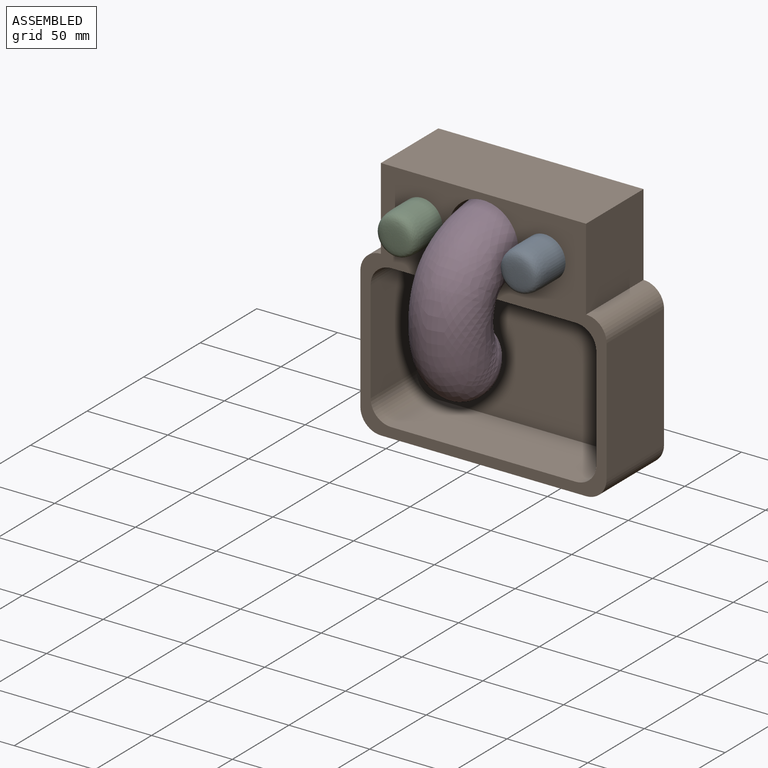
[diagram: assembled view]
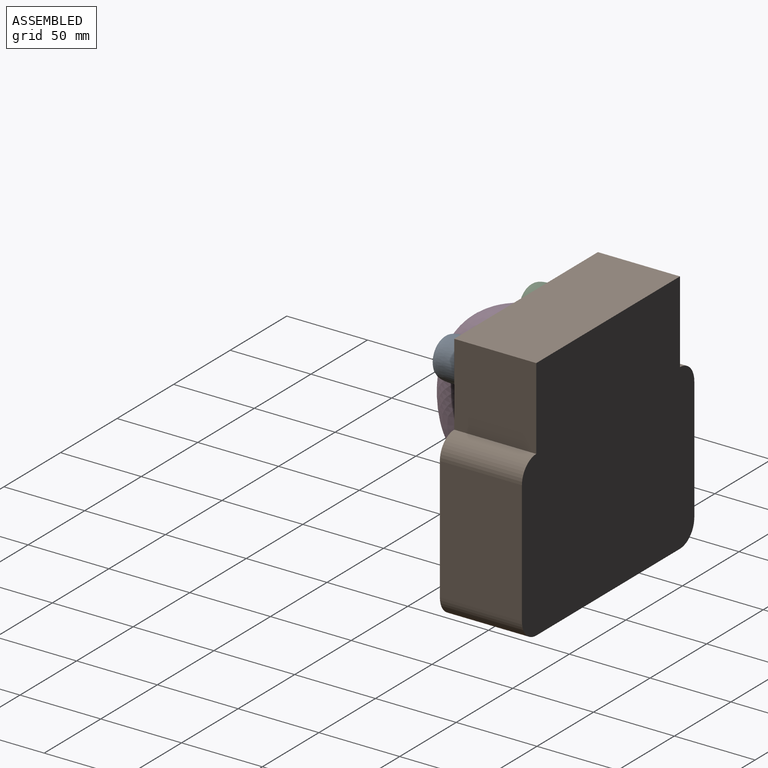
[diagram: assembled view, second angle]
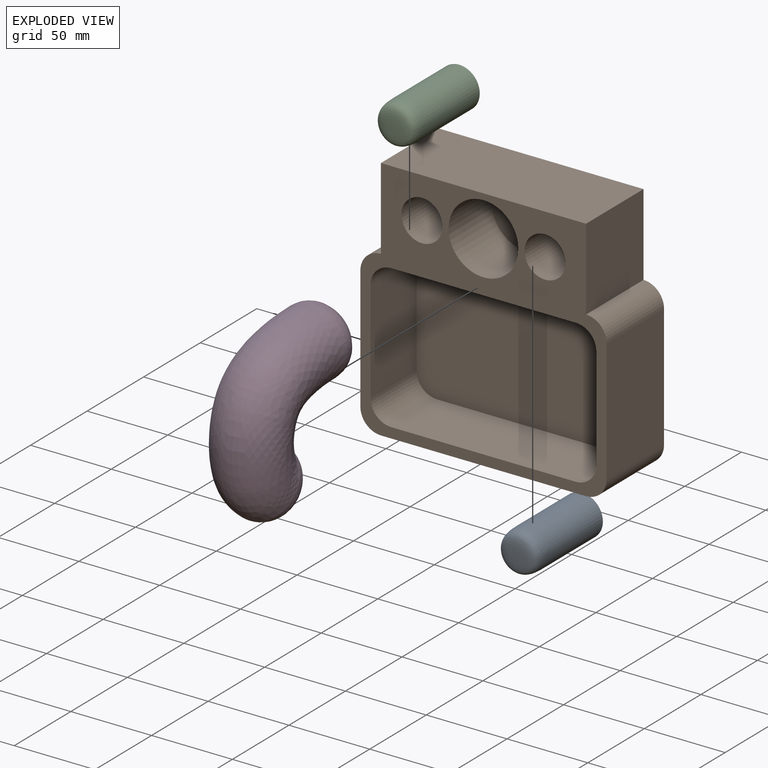
[diagram: exploded view]
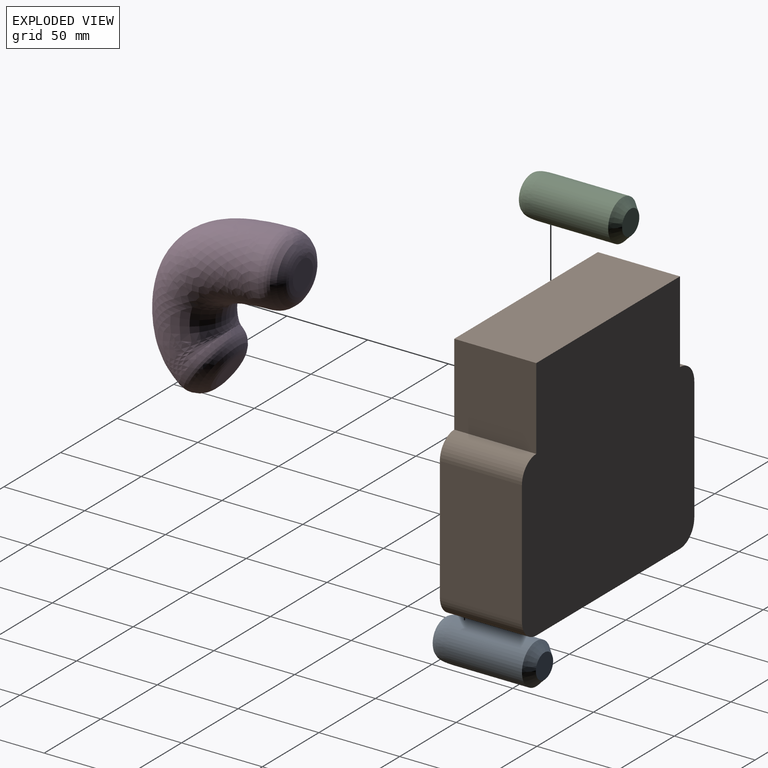
[diagram: exploded view, second angle]
ASSEMBLY  parts=4 mates=3
PART A: 4 faces, bbox 25.4x63.5x25.4 mm
  f0: cylinder r=12.7mm len=45.72mm, axis (0,1,0), area 3648.3mm2, adj f2,f3
  f1: plane 15.24x15.24mm, normal (0,1,0), area 182.4mm2, adj f2
  f2: cone r=12.7mm half-angle=45deg, axis (0,-1,0), area 458.6mm2, adj f0,f1
  f3: bspline ~25.39x25.37mm, area 1253.5mm2, adj f0
PART B: 27 faces, bbox 152.4x50.8x152.4 mm
  f0: cylinder r=12.7mm len=50.8mm, axis (0,-1,0), area 1013.4mm2, adj f1,f7,f8,f19
  f1: plane 76.2x50.8mm, normal (-1,0,0), area 3871mm2, adj f0,f2,f7,f8
  f2: cylinder r=12.7mm len=50.8mm, axis (0,-1,0), area 1013.4mm2, adj f1,f3,f7,f8
  f3: plane 127x50.8mm, normal (0,0,-1), area 6451.6mm2, adj f2,f4,f7,f8
  f4: cylinder r=12.7mm len=50.8mm, axis (0,-1,0), area 1013.4mm2, adj f3,f5,f7,f8
  f5: plane 76.2x50.8mm, normal (1,0,0), area 3871mm2, adj f4,f6,f7,f8
  f6: cylinder r=12.7mm len=50.8mm, axis (0,-1,0), area 1013.4mm2, adj f5,f7,f8,f20
  f7: plane 152.4x152.4mm, normal (0,1,0), area 21797mm2, adj f0,f1,f2,f3,f4,f5,f6,f18
  f8: plane 152.4x152.4mm, normal (0,-1,0), area 7038.3mm2, adj f0,f1,f2,f3,f4,f5,f6,f9
  f9: cylinder r=12.7mm len=40.64mm, axis (0,-1,0), area 810.7mm2, adj f8,f10,f16,f17
  f10: plane 114.3x40.64mm, normal (0,0,-1), area 4645.2mm2, adj f8,f9,f11,f17
  f11: cylinder r=12.7mm len=40.64mm, axis (0,-1,0), area 810.7mm2, adj f8,f10,f12,f17
  f12: plane 63.5x40.64mm, normal (1,0,0), area 2580.6mm2, adj f8,f11,f13,f17
  f13: cylinder r=12.7mm len=40.64mm, axis (0,-1,0), area 810.7mm2, adj f8,f12,f14,f17
  f14: plane 114.3x40.64mm, normal (0,0,1), area 4645.2mm2, adj f8,f13,f15,f17
  f15: cylinder r=12.7mm len=40.64mm, axis (0,-1,0), area 810.7mm2, adj f8,f14,f16,f17
  f16: plane 63.5x40.64mm, normal (-1,0,0), area 2580.6mm2, adj f8,f9,f15,f17
  f17: plane 139.7x88.9mm, normal (0,-1,0), area 12280.9mm2, adj f9,f10,f11,f12,f13,f14,f15,f16
  f18: plane 127x50.8mm, normal (0,0,1), area 6451.6mm2, adj f7,f8,f19,f20
  f19: plane 50.8x50.8mm, normal (-1,0,0), area 2580.6mm2, adj f0,f7,f8,f18
  f20: plane 50.8x50.8mm, normal (1,0,0), area 2580.6mm2, adj f6,f7,f8,f18
  f21: cylinder r=12.7mm len=38.1mm, axis (0,-1,0), area 3040.2mm2, adj f8,f22
  f22: plane 25.4x25.4mm, normal (0,-1,0), area 506.7mm2, adj f21
  f23: cylinder r=21.59mm len=43.18mm, axis (0,-1,0), area 5168.4mm2, adj f8,f24
  f24: plane 43.18x43.18mm, normal (0,-1,0), area 1464.4mm2, adj f23
  f25: cylinder r=12.7mm len=38.1mm, axis (0,-1,0), area 3040.2mm2, adj f8,f26
  f26: plane 25.4x25.4mm, normal (0,-1,0), area 506.7mm2, adj f25
PART C: same geometry as A
PART D: 12 faces, bbox 113.8x48.5x93.7 mm
  f0: plane 17.78x17.77mm, normal (0,0,-1), area 248mm2, adj f4
  f1: plane 17.79x15.57mm, normal (-0.5,0,-0.87), area 251.1mm2, adj f3
  f2: bspline ~99.51x77.31mm, area 13813.5mm2, adj f3,f4
  f3: bspline ~43.84x43.44mm, area 2097.1mm2, adj f1,f2
  f4: bspline ~43.34x43.2mm, area 2126.8mm2, adj f0,f2
  f5: offset ~104.81x82.42mm, area 5609.2mm2, adj f6,f9,f10,f11
  f6: bspline ~16.75x7.58mm, area 120.7mm2, adj f5,f9,f10
  f7: plane 17.78x17.77mm, normal (0,0,-1), area 248mm2, adj f11
  f8: plane 17.79x15.57mm, normal (-0.5,0,-0.87), area 251.1mm2, adj f10
  f9: offset ~104.81x82.42mm, area 5609.6mm2, adj f5,f6,f10,f11
  f10: bspline ~38.07x33.23mm, area 1519mm2, adj f5,f6,f8,f9
  f11: bspline ~38.23x38.12mm, area 1539.4mm2, adj f5,f7,f9
PLACE A t=(97.59,67.97,82.19)mm
PLACE B t=(59.49,29.87,5.99)mm
PLACE C t=(21.39,67.97,82.19)mm
PLACE D rot(axis=(0.58,-0.58,0.58),120deg) t=(59.49,67.97,82.07)mm
MATE fastened D.f0 <-> B.f23  axis (0,1,0) through (59.49,67.97,82.19)mm
MATE revolute C.f0 <-> B.f25  axis (0,1,0) through (21.39,67.97,82.19)mm
MATE revolute A.f0 <-> B.f21  axis (0,1,0) through (97.59,67.97,82.19)mm
